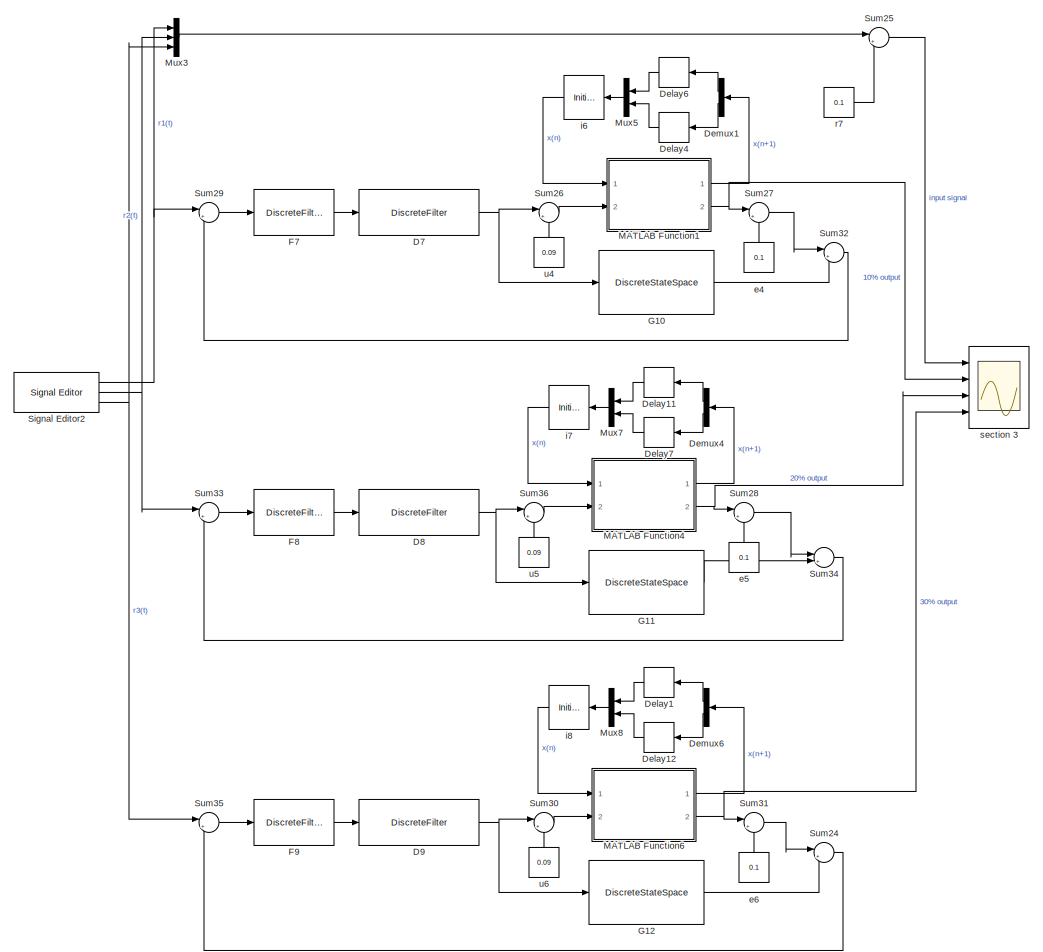
[diagram: root canvas - part 1/4, full width, top band]
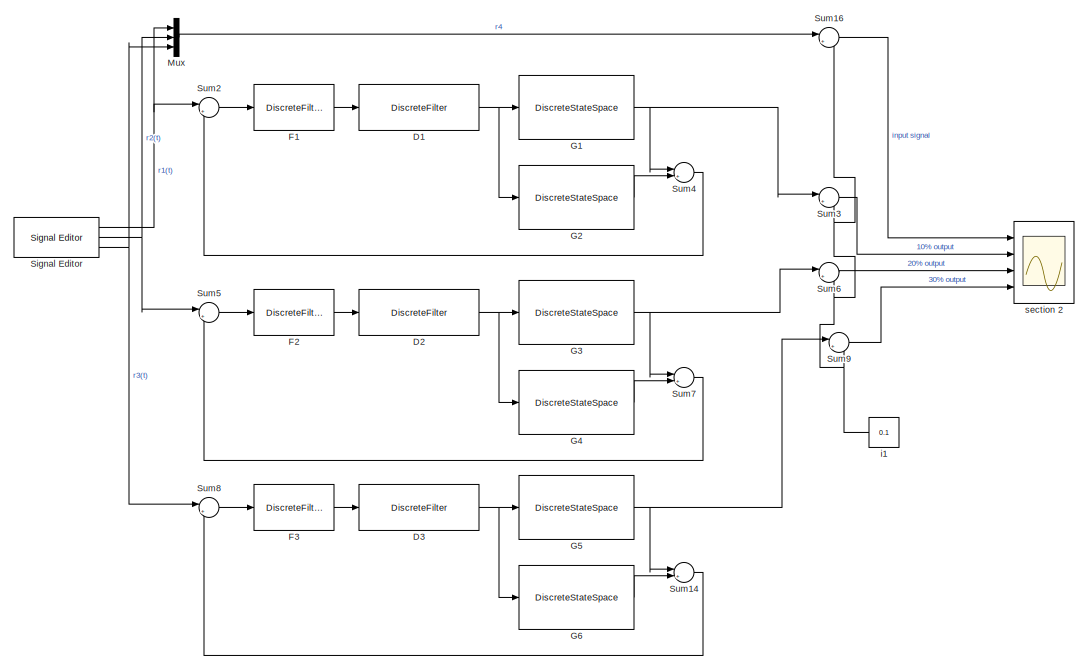
[diagram: root canvas - part 2/4, full width, middle band]
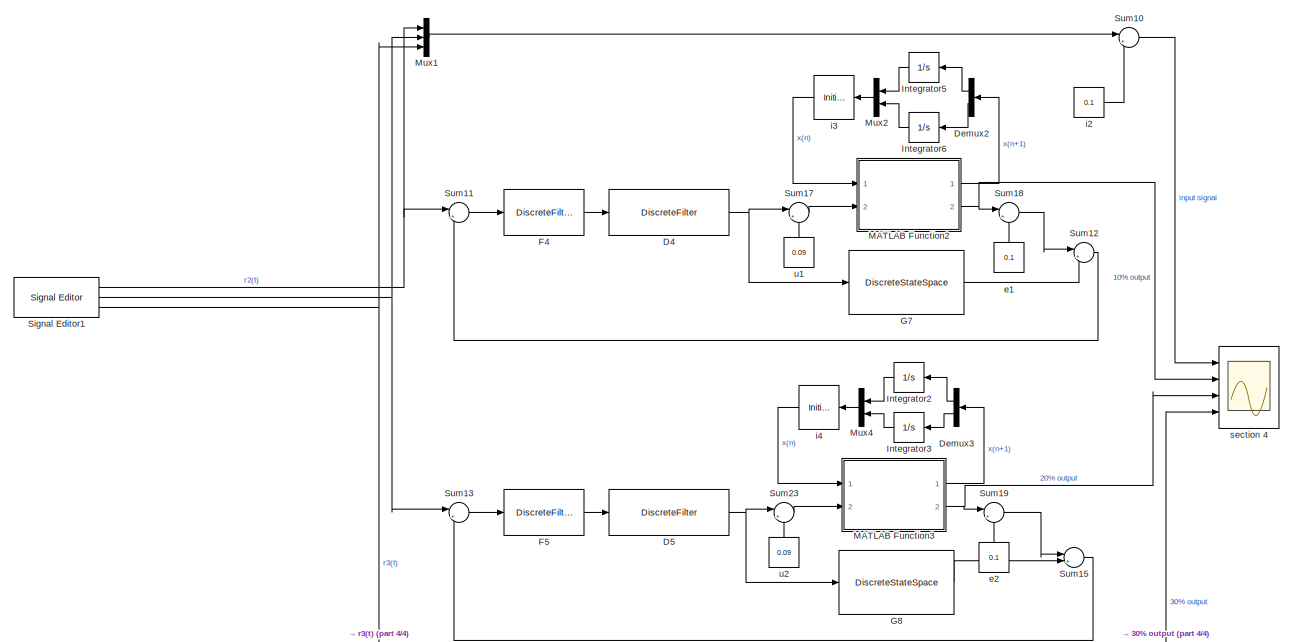
[diagram: root canvas - part 3/4, full width, bottom band]
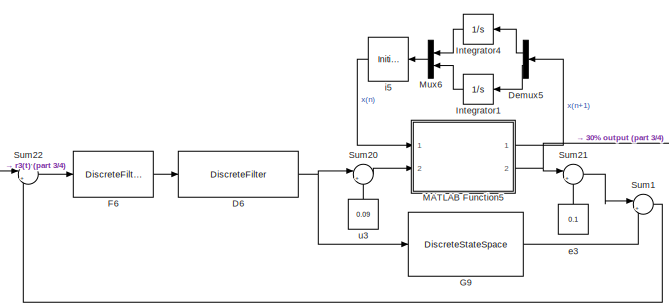
[diagram: root canvas - part 4/4, bottom center region]
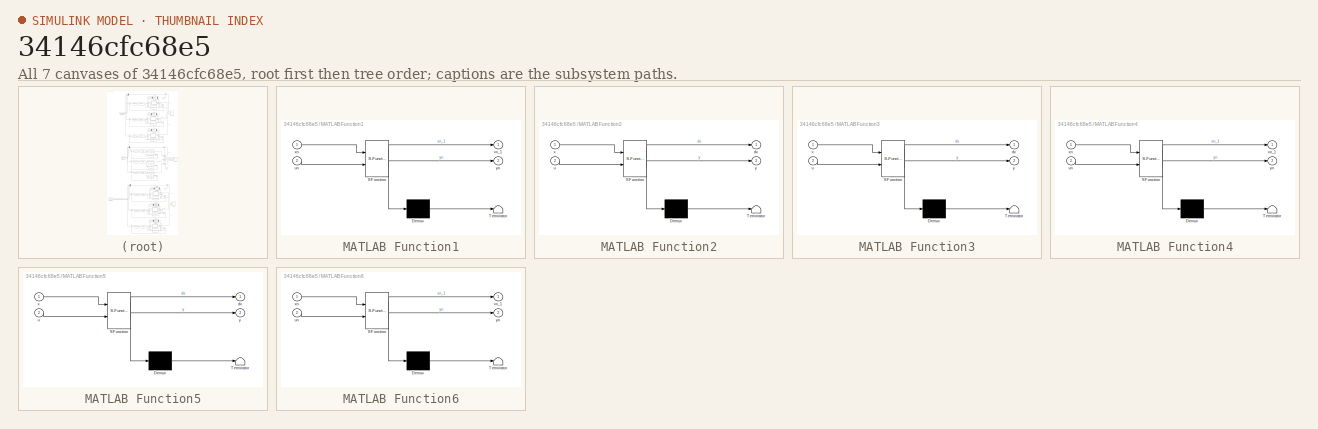
[diagram: thumbnail index - all 7 canvases of the model, root first then tree order]
MODEL slx_34146cfc68e5
KIND model
CONFIG AbsTol = auto
CONFIG EnableMultiTasking = off
CONFIG FixedStep = auto
CONFIG MaxStep = auto
CONFIG MinStep = auto
CONFIG RelTol = 1e-3
CONFIG SampleTimeConstraint = Unconstrained
CONFIG Solver = VariableStepAuto
CONFIG SolverName = VariableStepAuto
CONFIG StartTime = 0.0
CONFIG StopTime = 50
BLOCK [Scope]  section 2
  Floating = off
  NumInputPorts = 4
  Ports = [4]
  ScopeSpecificationString = Simulink.scopes.TimeScopeBlockCfg('CurrentConfiguration', extmgr.ConfigurationSet(extmgr.Configuration('Core','General UI',true),extmgr.Configuration('Core','Source UI',true),extmgr.Configuration('Sources','WiredSimulink',true,'DataLoggingVariableName','ScopeData2'),extmgr.Configuration('Visuals','Time Domain',true,'SerializedDisplays',{struct('MinYLimReal','0.0625','MaxYLimReal','0.1375','YLabelR...<+2146ch>
BLOCK [DiscreteFilter] D1
  Denominator = 1
  InputPortMap = u0
  Numerator = [35.51146 -64.80846 30.07823]
  Ports = [1, 1]
  SampleTime = 0.166
BLOCK [DiscreteFilter] D2
  Denominator = 1
  InputPortMap = u0
  Numerator = [35.51146 -64.80846 30.07823]
  Ports = [1, 1]
  SampleTime = 0.166
BLOCK [DiscreteFilter] D3
  Denominator = 1
  InputPortMap = u0
  Numerator = [35.51146 -64.80846 30.07823]
  Ports = [1, 1]
  SampleTime = 0.166
BLOCK [DiscreteFilter] D4
  Denominator = 1
  InputPortMap = u0
  Numerator = [35.51146 -64.80846 30.07823]
  Ports = [1, 1]
  SampleTime = 0.166
BLOCK [DiscreteFilter] D5
  Denominator = 1
  InputPortMap = u0
  Numerator = [35.51146 -64.80846 30.07823]
  Ports = [1, 1]
  SampleTime = 0.166
BLOCK [DiscreteFilter] D6
  Denominator = 1
  InputPortMap = u0
  Numerator = [35.51146 -64.80846 30.07823]
  Ports = [1, 1]
  SampleTime = 0.166
BLOCK [DiscreteFilter] D7
  Denominator = 1
  InputPortMap = u0
  Numerator = [35.51146 -64.80846 30.07823]
  Ports = [1, 1]
  SampleTime = 0.166
BLOCK [DiscreteFilter] D8
  Denominator = 1
  InputPortMap = u0
  Numerator = [35.51146 -64.80846 30.07823]
  Ports = [1, 1]
  SampleTime = 0.166
BLOCK [DiscreteFilter] D9
  Denominator = 1
  InputPortMap = u0
  Numerator = [35.51146 -64.80846 30.07823]
  Ports = [1, 1]
  SampleTime = 0.166
BLOCK [Delay] Delay1
  DelayLength = 1
  InitialCondition = 0
  InputPortMap = u0
  Ports = [1, 1]
  SampleTime = 0.166
BLOCK [Delay] Delay11
  DelayLength = 1
  InitialCondition = 0
  InputPortMap = u0
  Ports = [1, 1]
  SampleTime = 0.166
BLOCK [Delay] Delay12
  DelayLength = 1
  InitialCondition = 0
  InputPortMap = u0
  Ports = [1, 1]
  SampleTime = 0.166
BLOCK [Delay] Delay4
  DelayLength = 1
  InitialCondition = 0
  InputPortMap = u0
  Ports = [1, 1]
  SampleTime = 0.166
BLOCK [Delay] Delay6
  DelayLength = 1
  InitialCondition = 0
  InputPortMap = u0
  Ports = [1, 1]
  SampleTime = 0.166
BLOCK [Delay] Delay7
  DelayLength = 1
  InitialCondition = 0
  InputPortMap = u0
  Ports = [1, 1]
  SampleTime = 0.166
BLOCK [Demux] Demux1
  Outputs = 2
  Ports = [1, 2]
BLOCK [Demux] Demux2
  Outputs = 2
  Ports = [1, 2]
BLOCK [Demux] Demux3
  Outputs = 2
  Ports = [1, 2]
BLOCK [Demux] Demux4
  Outputs = 2
  Ports = [1, 2]
BLOCK [Demux] Demux5
  Outputs = 2
  Ports = [1, 2]
BLOCK [Demux] Demux6
  Outputs = 2
  Ports = [1, 2]
BLOCK [DiscreteFilter] F1
  Denominator = [1 -0.95]
  InputPortMap = u0
  Numerator = [1-0.95]
  Ports = [1, 1]
  SampleTime = 0.166
BLOCK [DiscreteFilter] F2
  Denominator = [1 -0.95]
  InputPortMap = u0
  Numerator = [1-0.95]
  Ports = [1, 1]
  SampleTime = 0.166
BLOCK [DiscreteFilter] F3
  Denominator = [1 -0.95]
  InputPortMap = u0
  Numerator = [1-0.95]
  Ports = [1, 1]
  SampleTime = 0.166
BLOCK [DiscreteFilter] F4
  Denominator = [1 -0.95]
  InputPortMap = u0
  Numerator = [1-0.95]
  Ports = [1, 1]
  SampleTime = 0.166
BLOCK [DiscreteFilter] F5
  Denominator = [1 -0.95]
  InputPortMap = u0
  Numerator = [1-0.95]
  Ports = [1, 1]
  SampleTime = 0.166
BLOCK [DiscreteFilter] F6
  Denominator = [1 -0.95]
  InputPortMap = u0
  Numerator = [1-0.95]
  Ports = [1, 1]
  SampleTime = 0.166
BLOCK [DiscreteFilter] F7
  Denominator = [1 -0.95]
  InputPortMap = u0
  Numerator = [1-0.95]
  Ports = [1, 1]
  SampleTime = 0.166
BLOCK [DiscreteFilter] F8
  Denominator = [1 -0.95]
  InputPortMap = u0
  Numerator = [1-0.95]
  Ports = [1, 1]
  SampleTime = 0.166
BLOCK [DiscreteFilter] F9
  Denominator = [1 -0.95]
  InputPortMap = u0
  Numerator = [1-0.95]
  Ports = [1, 1]
  SampleTime = 0.166
BLOCK [DiscreteStateSpace] G1
  A = [0.9884 0.1523;-0.1354 0.8361]
  B = [0.01447;0.1693]
  C = [1 0]
  D = 0
  SampleTime = 0.166
BLOCK [DiscreteStateSpace] G10
  A = [0.9884 0.1523;-0.1354 0.8361]
  B = [0.01447;0.1693]
  C = [1 0]
  D = 0
  SampleTime = 0.166
BLOCK [DiscreteStateSpace] G11
  A = [0.9884 0.1523;-0.1354 0.8361]
  B = [0.01447;0.1693]
  C = [1 0]
  D = 0
  SampleTime = 0.166
BLOCK [DiscreteStateSpace] G12
  A = [0.9884 0.1523;-0.1354 0.8361]
  B = [0.01447;0.1693]
  C = [1 0]
  D = 0
  SampleTime = 0.166
BLOCK [DiscreteStateSpace] G2
  A = [0.9884 0.1523;-0.1354 0.8361]
  B = [0.01447;0.1693]
  C = [1 0]
  D = 0
  SampleTime = 0.166
BLOCK [DiscreteStateSpace] G3
  A = [0.9884 0.1523;-0.1354 0.8361]
  B = [0.01447;0.1693]
  C = [1 0]
  D = 0
  SampleTime = 0.166
BLOCK [DiscreteStateSpace] G4
  A = [0.9884 0.1523;-0.1354 0.8361]
  B = [0.01447;0.1693]
  C = [1 0]
  D = 0
  SampleTime = 0.166
BLOCK [DiscreteStateSpace] G5
  A = [0.9884 0.1523;-0.1354 0.8361]
  B = [0.01447;0.1693]
  C = [1 0]
  D = 0
  SampleTime = 0.166
BLOCK [DiscreteStateSpace] G6
  A = [0.9884 0.1523;-0.1354 0.8361]
  B = [0.01447;0.1693]
  C = [1 0]
  D = 0
  SampleTime = 0.166
BLOCK [DiscreteStateSpace] G7
  A = [0.9884 0.1523;-0.1354 0.8361]
  B = [0.01447;0.1693]
  C = [1 0]
  D = 0
  SampleTime = 0.166
BLOCK [DiscreteStateSpace] G8
  A = [0.9884 0.1523;-0.1354 0.8361]
  B = [0.01447;0.1693]
  C = [1 0]
  D = 0
  SampleTime = 0.166
BLOCK [DiscreteStateSpace] G9
  A = [0.9884 0.1523;-0.1354 0.8361]
  B = [0.01447;0.1693]
  C = [1 0]
  D = 0
  SampleTime = 0.166
BLOCK [Integrator] Integrator1
  Ports = [1, 1]
BLOCK [Integrator] Integrator2
  InitialCondition = 0.1
  Ports = [1, 1]
BLOCK [Integrator] Integrator3
  Ports = [1, 1]
BLOCK [Integrator] Integrator4
  InitialCondition = 0.1
  Ports = [1, 1]
BLOCK [Integrator] Integrator5
  InitialCondition = 0.1
  Ports = [1, 1]
BLOCK [Integrator] Integrator6
  Ports = [1, 1]
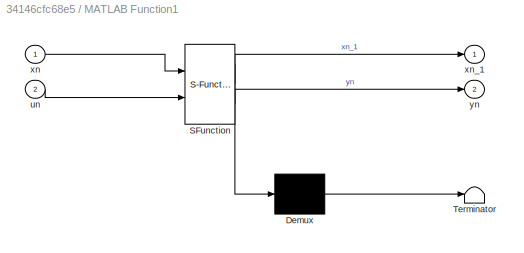
BLOCK [SubSystem] MATLAB Function1
  ErrorFcn = Stateflow.Translate.translate
  PermitHierarchicalResolution = ExplicitOnly
  Ports = [2, 2]
  RequestExecContextInheritance = off
  SFBlockType = MATLAB Function
  TreatAsAtomicUnit = on
BLOCK [Demux] MATLAB Function1/ Demux 
  Outputs = 1
  Ports = [1, 1]
BLOCK [S-Function] MATLAB Function1/ SFunction 
  EnableBusSupport = on
  FunctionName = sf_sfun
  PortCounts = [2 3]
  Ports = [2, 3]
  SFcnIsStateOwnerBlock = off
  SFunctionDeploymentMode = off
  Tag = Stateflow S-Function 1
BLOCK [Terminator] MATLAB Function1/ Terminator 
BLOCK [Inport] MATLAB Function1/un
  Port = 2
BLOCK [Inport] MATLAB Function1/xn
BLOCK [Outport] MATLAB Function1/xn_1
  VectorParamsAs1DForOutWhenUnconnected = off
BLOCK [Outport] MATLAB Function1/yn
  Port = 2
  VectorParamsAs1DForOutWhenUnconnected = off
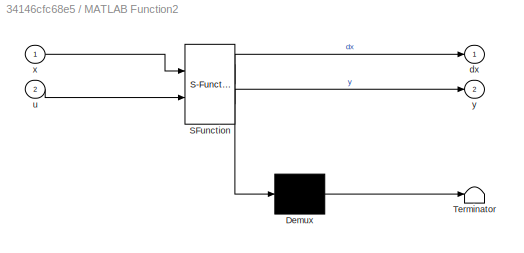
BLOCK [SubSystem] MATLAB Function2
  ErrorFcn = Stateflow.Translate.translate
  PermitHierarchicalResolution = ExplicitOnly
  Ports = [2, 2]
  RequestExecContextInheritance = off
  SFBlockType = MATLAB Function
  TreatAsAtomicUnit = on
BLOCK [Demux] MATLAB Function2/ Demux 
  Outputs = 1
  Ports = [1, 1]
BLOCK [S-Function] MATLAB Function2/ SFunction 
  EnableBusSupport = on
  FunctionName = sf_sfun
  PortCounts = [2 3]
  Ports = [2, 3]
  SFcnIsStateOwnerBlock = off
  SFunctionDeploymentMode = off
  Tag = Stateflow S-Function 3
BLOCK [Terminator] MATLAB Function2/ Terminator 
BLOCK [Outport] MATLAB Function2/dx
  VectorParamsAs1DForOutWhenUnconnected = off
BLOCK [Inport] MATLAB Function2/u
  Port = 2
BLOCK [Inport] MATLAB Function2/x
BLOCK [Outport] MATLAB Function2/y
  Port = 2
  VectorParamsAs1DForOutWhenUnconnected = off
BLOCK [SubSystem] MATLAB Function3
  ErrorFcn = Stateflow.Translate.translate
  PermitHierarchicalResolution = ExplicitOnly
  Ports = [2, 2]
  RequestExecContextInheritance = off
  SFBlockType = MATLAB Function
  TreatAsAtomicUnit = on
BLOCK [Demux] MATLAB Function3/ Demux 
  Outputs = 1
  Ports = [1, 1]
BLOCK [S-Function] MATLAB Function3/ SFunction 
  EnableBusSupport = on
  FunctionName = sf_sfun
  PortCounts = [2 3]
  Ports = [2, 3]
  SFcnIsStateOwnerBlock = off
  SFunctionDeploymentMode = off
  Tag = Stateflow S-Function 4
BLOCK [Terminator] MATLAB Function3/ Terminator 
BLOCK [Outport] MATLAB Function3/dx
  VectorParamsAs1DForOutWhenUnconnected = off
BLOCK [Inport] MATLAB Function3/u
  Port = 2
BLOCK [Inport] MATLAB Function3/x
BLOCK [Outport] MATLAB Function3/y
  Port = 2
  VectorParamsAs1DForOutWhenUnconnected = off
BLOCK [SubSystem] MATLAB Function4
  ErrorFcn = Stateflow.Translate.translate
  PermitHierarchicalResolution = ExplicitOnly
  Ports = [2, 2]
  RequestExecContextInheritance = off
  SFBlockType = MATLAB Function
  TreatAsAtomicUnit = on
BLOCK [Demux] MATLAB Function4/ Demux 
  Outputs = 1
  Ports = [1, 1]
BLOCK [S-Function] MATLAB Function4/ SFunction 
  EnableBusSupport = on
  FunctionName = sf_sfun
  PortCounts = [2 3]
  Ports = [2, 3]
  SFcnIsStateOwnerBlock = off
  SFunctionDeploymentMode = off
  Tag = Stateflow S-Function 2
BLOCK [Terminator] MATLAB Function4/ Terminator 
BLOCK [Inport] MATLAB Function4/un
  Port = 2
BLOCK [Inport] MATLAB Function4/xn
BLOCK [Outport] MATLAB Function4/xn_1
  VectorParamsAs1DForOutWhenUnconnected = off
BLOCK [Outport] MATLAB Function4/yn
  Port = 2
  VectorParamsAs1DForOutWhenUnconnected = off
BLOCK [SubSystem] MATLAB Function5
  ErrorFcn = Stateflow.Translate.translate
  PermitHierarchicalResolution = ExplicitOnly
  Ports = [2, 2]
  RequestExecContextInheritance = off
  SFBlockType = MATLAB Function
  TreatAsAtomicUnit = on
BLOCK [Demux] MATLAB Function5/ Demux 
  Outputs = 1
  Ports = [1, 1]
BLOCK [S-Function] MATLAB Function5/ SFunction 
  EnableBusSupport = on
  FunctionName = sf_sfun
  PortCounts = [2 3]
  Ports = [2, 3]
  SFcnIsStateOwnerBlock = off
  SFunctionDeploymentMode = off
  Tag = Stateflow S-Function 6
BLOCK [Terminator] MATLAB Function5/ Terminator 
BLOCK [Outport] MATLAB Function5/dx
  VectorParamsAs1DForOutWhenUnconnected = off
BLOCK [Inport] MATLAB Function5/u
  Port = 2
BLOCK [Inport] MATLAB Function5/x
BLOCK [Outport] MATLAB Function5/y
  Port = 2
  VectorParamsAs1DForOutWhenUnconnected = off
BLOCK [SubSystem] MATLAB Function6
  ErrorFcn = Stateflow.Translate.translate
  PermitHierarchicalResolution = ExplicitOnly
  Ports = [2, 2]
  RequestExecContextInheritance = off
  SFBlockType = MATLAB Function
  TreatAsAtomicUnit = on
BLOCK [Demux] MATLAB Function6/ Demux 
  Outputs = 1
  Ports = [1, 1]
BLOCK [S-Function] MATLAB Function6/ SFunction 
  EnableBusSupport = on
  FunctionName = sf_sfun
  PortCounts = [2 3]
  Ports = [2, 3]
  SFcnIsStateOwnerBlock = off
  SFunctionDeploymentMode = off
  Tag = Stateflow S-Function 5
BLOCK [Terminator] MATLAB Function6/ Terminator 
BLOCK [Inport] MATLAB Function6/un
  Port = 2
BLOCK [Inport] MATLAB Function6/xn
BLOCK [Outport] MATLAB Function6/xn_1
  VectorParamsAs1DForOutWhenUnconnected = off
BLOCK [Outport] MATLAB Function6/yn
  Port = 2
  VectorParamsAs1DForOutWhenUnconnected = off
BLOCK [Mux] Mux
  DisplayOption = bar
  Inputs = 3
  Ports = [3, 1]
BLOCK [Mux] Mux1
  DisplayOption = bar
  Inputs = 3
  Ports = [3, 1]
BLOCK [Mux] Mux2
  DisplayOption = bar
  Inputs = 2
  Ports = [2, 1]
BLOCK [Mux] Mux3
  DisplayOption = bar
  Inputs = 3
  Ports = [3, 1]
BLOCK [Mux] Mux4
  DisplayOption = bar
  Inputs = 2
  Ports = [2, 1]
BLOCK [Mux] Mux5
  DisplayOption = bar
  Inputs = 2
  Ports = [2, 1]
BLOCK [Mux] Mux6
  DisplayOption = bar
  Inputs = 2
  Ports = [2, 1]
BLOCK [Mux] Mux7
  DisplayOption = bar
  Inputs = 2
  Ports = [2, 1]
BLOCK [Mux] Mux8
  DisplayOption = bar
  Inputs = 2
  Ports = [2, 1]
BLOCK [Reference] Signal Editor  REF=SignalEditorBlockLib/Signal Editor
  Ports = [0, 3]
  SourceBlock = SignalEditorBlockLib/Signal Editor
  SourceProductBaseCode = SL
  SourceType = SignalEditor
  UserDataPersistent = on
BLOCK [Reference] Signal Editor1  REF=SignalEditorBlockLib/Signal Editor
  Ports = [0, 3]
  SourceBlock = SignalEditorBlockLib/Signal Editor
  SourceProductBaseCode = SL
  SourceType = SignalEditor
  UserDataPersistent = on
BLOCK [Reference] Signal Editor2  REF=SignalEditorBlockLib/Signal Editor
  Ports = [0, 3]
  SourceBlock = SignalEditorBlockLib/Signal Editor
  SourceProductBaseCode = SL
  SourceType = SignalEditor
  UserDataPersistent = on
BLOCK [Sum] Sum1
  Inputs = |+-
  Ports = [2, 1]
BLOCK [Sum] Sum10
  Inputs = |++
  Ports = [2, 1]
BLOCK [Sum] Sum11
  Inputs = |+-
  Ports = [2, 1]
BLOCK [Sum] Sum12
  Inputs = |+-
  Ports = [2, 1]
BLOCK [Sum] Sum13
  Inputs = |+-
  Ports = [2, 1]
BLOCK [Sum] Sum14
  Inputs = |+-
  Ports = [2, 1]
BLOCK [Sum] Sum15
  Inputs = |+-
  Ports = [2, 1]
BLOCK [Sum] Sum16
  Inputs = |++
  Ports = [2, 1]
BLOCK [Sum] Sum17
  Inputs = |++
  Ports = [2, 1]
BLOCK [Sum] Sum18
  Inputs = |+-
  NameLocation = top
  Ports = [2, 1]
BLOCK [Sum] Sum19
  Inputs = |+-
  NameLocation = top
  Ports = [2, 1]
BLOCK [Sum] Sum2
  Inputs = |+-
  Ports = [2, 1]
BLOCK [Sum] Sum20
  Inputs = |++
  Ports = [2, 1]
BLOCK [Sum] Sum21
  Inputs = |+-
  NameLocation = top
  Ports = [2, 1]
BLOCK [Sum] Sum22
  Inputs = |+-
  Ports = [2, 1]
BLOCK [Sum] Sum23
  Inputs = |++
  Ports = [2, 1]
BLOCK [Sum] Sum24
  Inputs = |+-
  Ports = [2, 1]
BLOCK [Sum] Sum25
  Inputs = |++
  Ports = [2, 1]
BLOCK [Sum] Sum26
  Inputs = |++
  Ports = [2, 1]
BLOCK [Sum] Sum27
  Inputs = |+-
  NameLocation = top
  Ports = [2, 1]
BLOCK [Sum] Sum28
  Inputs = |+-
  NameLocation = top
  Ports = [2, 1]
BLOCK [Sum] Sum29
  Inputs = |+-
  Ports = [2, 1]
BLOCK [Sum] Sum3
  Inputs = |++
  Ports = [2, 1]
BLOCK [Sum] Sum30
  Inputs = |++
  Ports = [2, 1]
BLOCK [Sum] Sum31
  Inputs = |+-
  NameLocation = top
  Ports = [2, 1]
BLOCK [Sum] Sum32
  Inputs = |+-
  Ports = [2, 1]
BLOCK [Sum] Sum33
  Inputs = |+-
  Ports = [2, 1]
BLOCK [Sum] Sum34
  Inputs = |+-
  Ports = [2, 1]
BLOCK [Sum] Sum35
  Inputs = |+-
  Ports = [2, 1]
BLOCK [Sum] Sum36
  Inputs = |++
  Ports = [2, 1]
BLOCK [Sum] Sum4
  Inputs = |+-
  Ports = [2, 1]
BLOCK [Sum] Sum5
  Inputs = |+-
  Ports = [2, 1]
BLOCK [Sum] Sum6
  Inputs = |++
  Ports = [2, 1]
BLOCK [Sum] Sum7
  Inputs = |+-
  Ports = [2, 1]
BLOCK [Sum] Sum8
  Inputs = |+-
  Ports = [2, 1]
BLOCK [Sum] Sum9
  Inputs = |++
  Ports = [2, 1]
BLOCK [Constant] e1
  NameLocation = right
  SampleTime = 0.166
  Value = 0.1
BLOCK [Constant] e2
  NameLocation = right
  SampleTime = 0.166
  Value = 0.1
BLOCK [Constant] e3
  NameLocation = right
  SampleTime = 0.166
  Value = 0.1
BLOCK [Constant] e4
  NameLocation = right
  SampleTime = 0.166
  Value = 0.1
BLOCK [Constant] e5
  NameLocation = right
  SampleTime = 0.166
  Value = 0.1
BLOCK [Constant] e6
  NameLocation = right
  SampleTime = 0.166
  Value = 0.1
BLOCK [Constant] i1
  NameLocation = top
  SampleTime = 0.166
  Value = 0.1
BLOCK [Constant] i2
  NameLocation = top
  SampleTime = 0.166
  Value = 0.1
BLOCK [InitialCondition] i3
  Value = [0.1;0]
BLOCK [InitialCondition] i4
  Value = [0.1;0]
BLOCK [InitialCondition] i5
  Value = [0.1;0]
BLOCK [InitialCondition] i6
  Value = [0.1;0]
BLOCK [InitialCondition] i7
  Value = [0.1;0]
BLOCK [InitialCondition] i8
  Value = [0.1;0]
BLOCK [Constant] r7
  NameLocation = top
  SampleTime = 0.166
  Value = 0.1
BLOCK [Scope] section 3
  Floating = off
  NumInputPorts = 4
  Ports = [4]
  ScopeSpecificationString = Simulink.scopes.TimeScopeBlockCfg('CurrentConfiguration', extmgr.ConfigurationSet(extmgr.Configuration('Core','General UI',true),extmgr.Configuration('Core','Source UI',true),extmgr.Configuration('Sources','WiredSimulink',true,'DataLoggingVariableName','ScopeData1'),extmgr.Configuration('Visuals','Time Domain',true,'SerializedDisplays',{struct('MinYLimReal','0.04234','MaxYLimReal','0.15767','YLabe...<+2176ch>
BLOCK [Scope] section 4
  Floating = off
  NumInputPorts = 4
  Ports = [4]
  ScopeSpecificationString = Simulink.scopes.TimeScopeBlockCfg('CurrentConfiguration', extmgr.ConfigurationSet(extmgr.Configuration('Core','General UI',true),extmgr.Configuration('Core','Source UI',true),extmgr.Configuration('Sources','WiredSimulink',true,'DataLoggingVariableName','ScopeData1'),extmgr.Configuration('Visuals','Time Domain',true,'SerializedDisplays',{struct('MinYLimReal','0.04234','MaxYLimReal','0.16533','YLabe...<+2163ch>
BLOCK [Constant] u1
  NameLocation = right
  SampleTime = 0.166
  Value = 0.09
BLOCK [Constant] u2
  NameLocation = right
  SampleTime = 0.166
  Value = 0.09
BLOCK [Constant] u3
  NameLocation = right
  SampleTime = 0.166
  Value = 0.09
BLOCK [Constant] u4
  NameLocation = right
  SampleTime = 0.166
  Value = 0.09
BLOCK [Constant] u5
  NameLocation = right
  SampleTime = 0.166
  Value = 0.09
BLOCK [Constant] u6
  NameLocation = right
  SampleTime = 0.166
  Value = 0.09
NET D1:1 -> G1:1, G2:1
NET D2:1 -> G3:1, G4:1
NET D3:1 -> G5:1, G6:1
NET D4:1 -> G7:1, Sum17:1
NET D5:1 -> G8:1, Sum23:1
NET D6:1 -> G9:1, Sum20:1
NET D7:1 -> G10:1, Sum26:1
NET D8:1 -> G11:1, Sum36:1
NET D9:1 -> G12:1, Sum30:1
LINE Delay11:1 -> Mux7:1
LINE Delay12:1 -> Mux8:2
LINE Delay1:1 -> Mux8:1
LINE Delay4:1 -> Mux5:2
LINE Delay6:1 -> Mux5:1
LINE Delay7:1 -> Mux7:2
LINE Demux1:1 -> Delay6:1
LINE Demux1:2 -> Delay4:1
LINE Demux2:1 -> Integrator5:1
LINE Demux2:2 -> Integrator6:1
LINE Demux3:1 -> Integrator2:1
LINE Demux3:2 -> Integrator3:1
LINE Demux4:1 -> Delay11:1
LINE Demux4:2 -> Delay7:1
LINE Demux5:1 -> Integrator4:1
LINE Demux5:2 -> Integrator1:1
LINE Demux6:1 -> Delay1:1
LINE Demux6:2 -> Delay12:1
LINE F1:1 -> D1:1
LINE F2:1 -> D2:1
LINE F3:1 -> D3:1
LINE F4:1 -> D4:1
LINE F5:1 -> D5:1
LINE F6:1 -> D6:1
LINE F7:1 -> D7:1
LINE F8:1 -> D8:1
LINE F9:1 -> D9:1
LINE G10:1 -> Sum32:2
LINE G11:1 -> Sum34:2
LINE G12:1 -> Sum24:2
NET G1:1 -> Sum3:1, Sum4:1
LINE G2:1 -> Sum4:2
NET G3:1 -> Sum6:1, Sum7:1
LINE G4:1 -> Sum7:2
NET G5:1 -> Sum14:1, Sum9:1
LINE G6:1 -> Sum14:2
LINE G7:1 -> Sum12:2
LINE G8:1 -> Sum15:2
LINE G9:1 -> Sum1:2
LINE Integrator1:1 -> Mux6:2
LINE Integrator2:1 -> Mux4:1
LINE Integrator3:1 -> Mux4:2
LINE Integrator4:1 -> Mux6:1
LINE Integrator5:1 -> Mux2:1
LINE Integrator6:1 -> Mux2:2
LINE MATLAB Function1:1 -> Demux1:1
NET MATLAB Function1:2 -> Sum27:1, section 3:2
LINE MATLAB Function2:1 -> Demux2:1
NET MATLAB Function2:2 -> Sum18:1, section 4:2
LINE MATLAB Function3:1 -> Demux3:1
NET MATLAB Function3:2 -> Sum19:1, section 4:3
LINE MATLAB Function4:1 -> Demux4:1
NET MATLAB Function4:2 -> Sum28:1, section 3:3
LINE MATLAB Function5:1 -> Demux5:1
NET MATLAB Function5:2 -> Sum21:1, section 4:4
LINE MATLAB Function6:1 -> Demux6:1
NET MATLAB Function6:2 -> Sum31:1, section 3:4
LINE Mux1:1 -> Sum10:1
LINE Mux2:1 -> i3:1
LINE Mux3:1 -> Sum25:1
LINE Mux4:1 -> i4:1
LINE Mux5:1 -> i6:1
LINE Mux6:1 -> i5:1
LINE Mux7:1 -> i7:1
LINE Mux8:1 -> i8:1
LINE Mux:1 -> Sum16:1
NET Signal Editor1:1 -> Mux1:1, Sum11:1
NET Signal Editor1:2 -> Mux1:2, Sum13:1
NET Signal Editor1:3 -> Mux1:3, Sum22:1
NET Signal Editor2:1 -> Mux3:1, Sum29:1
NET Signal Editor2:2 -> Mux3:2, Sum33:1
NET Signal Editor2:3 -> Mux3:3, Sum35:1
NET Signal Editor:1 -> Mux:1, Sum2:1
NET Signal Editor:2 -> Mux:2, Sum5:1
NET Signal Editor:3 -> Mux:3, Sum8:1
LINE Sum10:1 -> section 4:1
LINE Sum11:1 -> F4:1
LINE Sum12:1 -> Sum11:2
LINE Sum13:1 -> F5:1
LINE Sum14:1 -> Sum8:2
LINE Sum15:1 -> Sum13:2
LINE Sum16:1 ->  section 2:1
LINE Sum17:1 -> MATLAB Function2:2
LINE Sum18:1 -> Sum12:1
LINE Sum19:1 -> Sum15:1
LINE Sum1:1 -> Sum22:2
LINE Sum20:1 -> MATLAB Function5:2
LINE Sum21:1 -> Sum1:1
LINE Sum22:1 -> F6:1
LINE Sum23:1 -> MATLAB Function3:2
LINE Sum24:1 -> Sum35:2
LINE Sum25:1 -> section 3:1
LINE Sum26:1 -> MATLAB Function1:2
LINE Sum27:1 -> Sum32:1
LINE Sum28:1 -> Sum34:1
LINE Sum29:1 -> F7:1
LINE Sum2:1 -> F1:1
LINE Sum30:1 -> MATLAB Function6:2
LINE Sum31:1 -> Sum24:1
LINE Sum32:1 -> Sum29:2
LINE Sum33:1 -> F8:1
LINE Sum34:1 -> Sum33:2
LINE Sum35:1 -> F9:1
LINE Sum36:1 -> MATLAB Function4:2
LINE Sum3:1 ->  section 2:2
LINE Sum4:1 -> Sum2:2
LINE Sum5:1 -> F2:1
LINE Sum6:1 ->  section 2:3
LINE Sum7:1 -> Sum5:2
LINE Sum8:1 -> F3:1
LINE Sum9:1 ->  section 2:4
LINE e1:1 -> Sum18:2
LINE e2:1 -> Sum19:2
LINE e3:1 -> Sum21:2
LINE e4:1 -> Sum27:2
LINE e5:1 -> Sum28:2
LINE e6:1 -> Sum31:2
NET i1:1 -> Sum16:2, Sum3:2, Sum6:2, Sum9:2
LINE i2:1 -> Sum10:2
LINE i3:1 -> MATLAB Function2:1
LINE i4:1 -> MATLAB Function3:1
LINE i5:1 -> MATLAB Function5:1
LINE i6:1 -> MATLAB Function1:1
LINE i7:1 -> MATLAB Function4:1
LINE i8:1 -> MATLAB Function6:1
LINE r7:1 -> Sum25:2
LINE u1:1 -> Sum17:2
LINE u2:1 -> Sum23:2
LINE u3:1 -> Sum20:2
LINE u4:1 -> Sum26:2
LINE u5:1 -> Sum36:2
LINE u6:1 -> Sum30:2
note: NET lines group one-source signal fan-out (src -> all destinations, sorted); 1:1 wires keep LINE
CHART MATLAB Function4 states=1 transitions=1
  STATE_LABEL 'eML_blk_kernel()'
  STATE_LABEL 'SCRIPT:\nfunction [xn_1,yn] = g1(xn,un)\nxn_1 = [xn(1)+0.166*xn(2);-0.166*xn(1)+(1-0.166)*xn(2)+0.166*un/(1-xn(1))];\nyn = [1 0]*xn;\n'
CHART MATLAB Function2 states=1 transitions=1
  STATE_LABEL 'eML_blk_kernel()'
  STATE_LABEL 'SCRIPT:\nfunction [dx,y] = System(x,u)\ndx = [x(2);-x(1)-x(2)+u/(1-x(1))];\ny  = [1 0]*x;'
CHART MATLAB Function3 states=1 transitions=1
  STATE_LABEL 'eML_blk_kernel()'
  STATE_LABEL 'SCRIPT:\nfunction [dx,y] = System(x,u)\ndx = [x(2);-x(1)-x(2)+u/(1-x(1))];\ny  = [1 0]*x;\n\n'
CHART MATLAB Function6 states=1 transitions=1
  STATE_LABEL 'eML_blk_kernel()'
  STATE_LABEL 'SCRIPT:\nfunction [xn_1,yn] = g1(xn,un)\nxn_1 = [xn(1)+0.166*xn(2);-0.166*xn(1)+(1-0.166)*xn(2)+0.166*un/(1-xn(1))];\nyn = [1 0]*xn;\n'
CHART MATLAB Function5 states=1 transitions=1
  STATE_LABEL 'eML_blk_kernel()'
  STATE_LABEL 'SCRIPT:\nfunction [dx,y] = System(x,u)\ndx = [x(2);-x(1)-x(2)+u/(1-x(1))];\ny  = [1 0]*x;'
CHART MATLAB Function1 states=1 transitions=1
  STATE_LABEL 'eML_blk_kernel()'
  STATE_LABEL 'SCRIPT:\nfunction [xn_1,yn] = g1(xn,un)\nxn_1 = [xn(1)+0.166*xn(2);-0.166*xn(1)+(1-0.166)*xn(2)+0.166*un/(1-xn(1))];\nyn = [1 0]*xn;'
CHART  states=0 transitions=0
CHART  states=0 transitions=0
CHART  states=0 transitions=0
CHART  states=0 transitions=0
CHART  states=0 transitions=0
CHART  states=0 transitions=0
